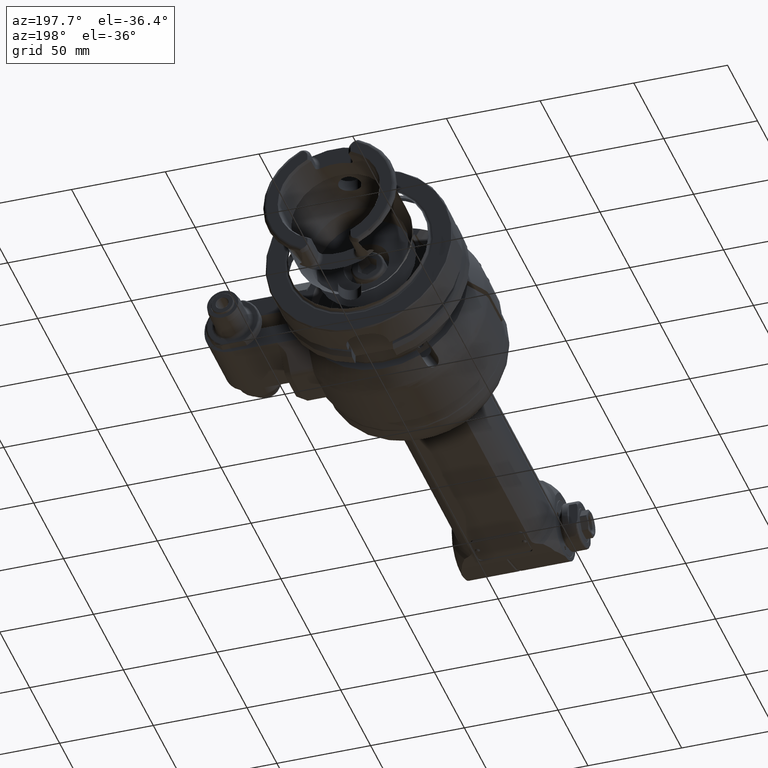
[diagram: clean part render]
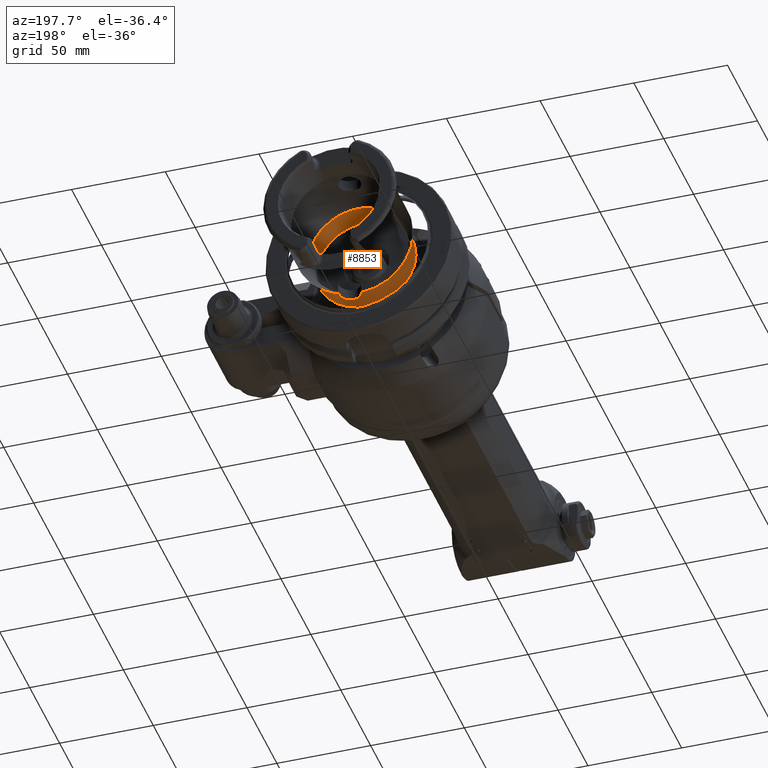
[diagram: same view with one face highlighted and labeled with its STEP entity id]
A machine part, auxiliary view. The second image highlights one B-rep face of the part: STEP entity #8853.
In plain terms, the highlighted cylindrical surface (bore or boss wall) has radius 26.5 mm, axis along (0, 1, 0).
Its self-contained STEP definition (entity closure, byte-faithful):
#938=FACE_OUTER_BOUND('',#1506,.T.);
#1506=EDGE_LOOP('',(#7169,#7170,#7171,#7172,#7173));
#2039=CIRCLE('',#9733,26.5);
#2041=CIRCLE('',#9735,26.5);
#2042=CIRCLE('',#9737,26.5);
#2726=LINE('',#56391,#3325);
#3325=VECTOR('',#11560,26.5);
#4083=VERTEX_POINT('',#56369);
#4084=VERTEX_POINT('',#56370);
#4085=VERTEX_POINT('',#56389);
#5191=EDGE_CURVE('',#4083,#4084,#2039,.T.);
#5194=EDGE_CURVE('',#4084,#4083,#2041,.T.);
#5195=EDGE_CURVE('',#4085,#4085,#2042,.T.);
#5196=EDGE_CURVE('',#4085,#4083,#2726,.T.);
#7169=ORIENTED_EDGE('',*,*,#5195,.F.);
#7170=ORIENTED_EDGE('',*,*,#5196,.T.);
#7171=ORIENTED_EDGE('',*,*,#5194,.F.);
#7172=ORIENTED_EDGE('',*,*,#5191,.F.);
#7173=ORIENTED_EDGE('',*,*,#5196,.F.);
#8518=CYLINDRICAL_SURFACE('',#9736,26.5);
#8853=ADVANCED_FACE('',(#938),#8518,.F.);
#9733=AXIS2_PLACEMENT_3D('',#56371,#11550,#11551);
#9735=AXIS2_PLACEMENT_3D('',#56387,#11554,#11555);
#9736=AXIS2_PLACEMENT_3D('',#56388,#11556,#11557);
#9737=AXIS2_PLACEMENT_3D('',#56390,#11558,#11559);
#11550=DIRECTION('center_axis',(1.,-3.552713678797E-13,0.));
#11551=DIRECTION('ref_axis',(0.,0.,-1.));
#11554=DIRECTION('center_axis',(1.,-3.552713678797E-13,0.));
#11555=DIRECTION('ref_axis',(0.,0.,-1.));
#11556=DIRECTION('center_axis',(-1.,3.552713678797E-13,0.));
#11557=DIRECTION('ref_axis',(0.,0.,-1.));
#11558=DIRECTION('center_axis',(-1.,3.552713678797E-13,0.));
#11559=DIRECTION('ref_axis',(0.,0.,-1.));
#11560=DIRECTION('',(-1.,3.552713678797E-13,0.));
#56369=CARTESIAN_POINT('',(-11.,4.109395146484E-11,26.5));
#56370=CARTESIAN_POINT('',(-11.,4.10874609439695E-11,-26.5));
#56371=CARTESIAN_POINT('Origin',(-11.,4.109070625798E-11,0.));
#56387=CARTESIAN_POINT('Origin',(-11.,4.109070625798E-11,0.));
#56388=CARTESIAN_POINT('Origin',(-29.75,4.775204440573E-11,0.));
#56389=CARTESIAN_POINT('',(1.500000000003,3.6653059473506E-11,26.5));
#56390=CARTESIAN_POINT('Origin',(1.500000000003,3.664981415949E-11,0.));
#56391=CARTESIAN_POINT('',(-29.75,4.77552897197477E-11,26.5));